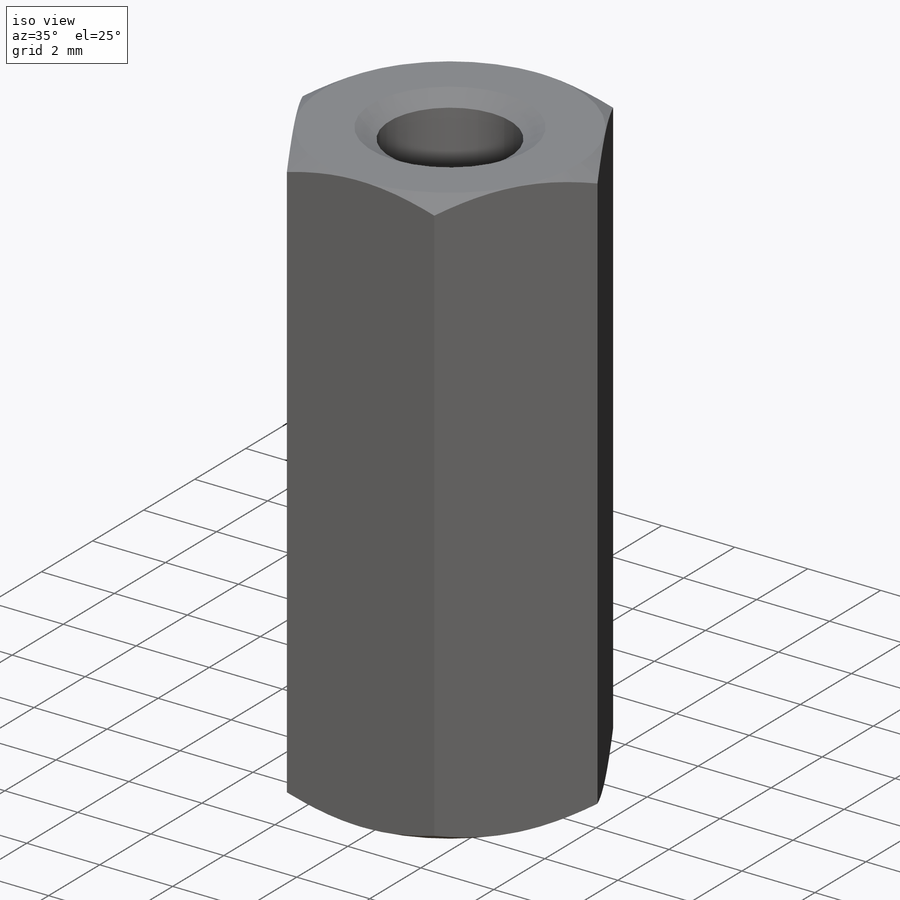
[diagram: iso view]
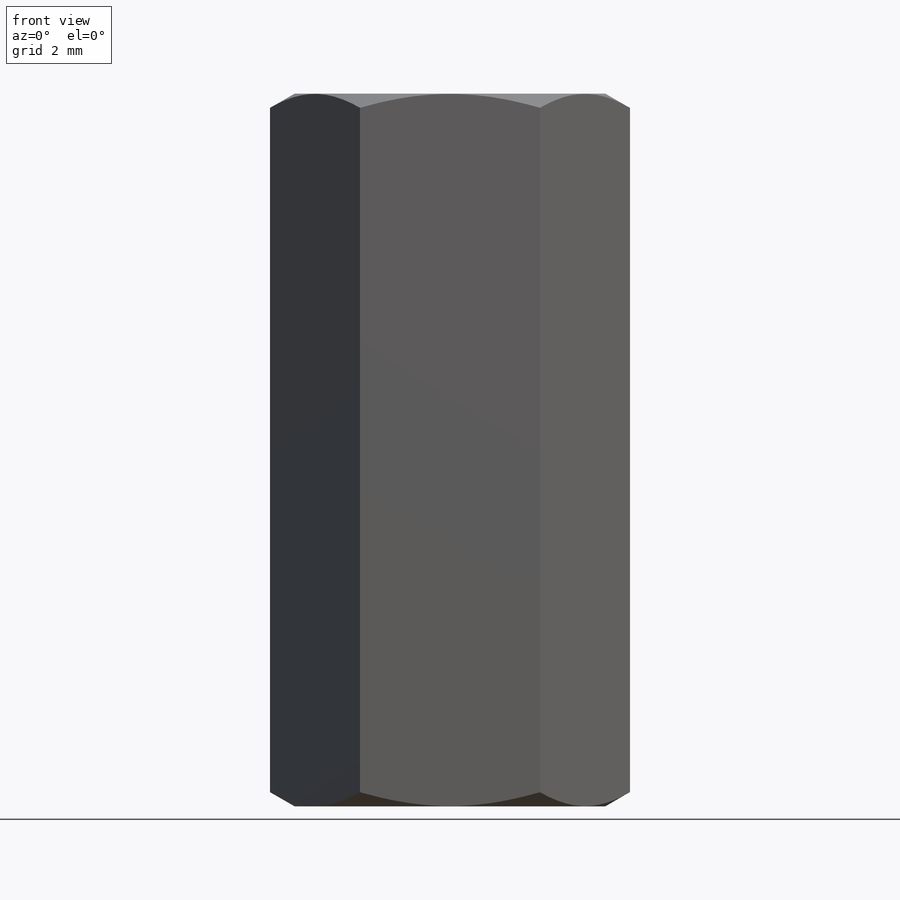
[diagram: front view]
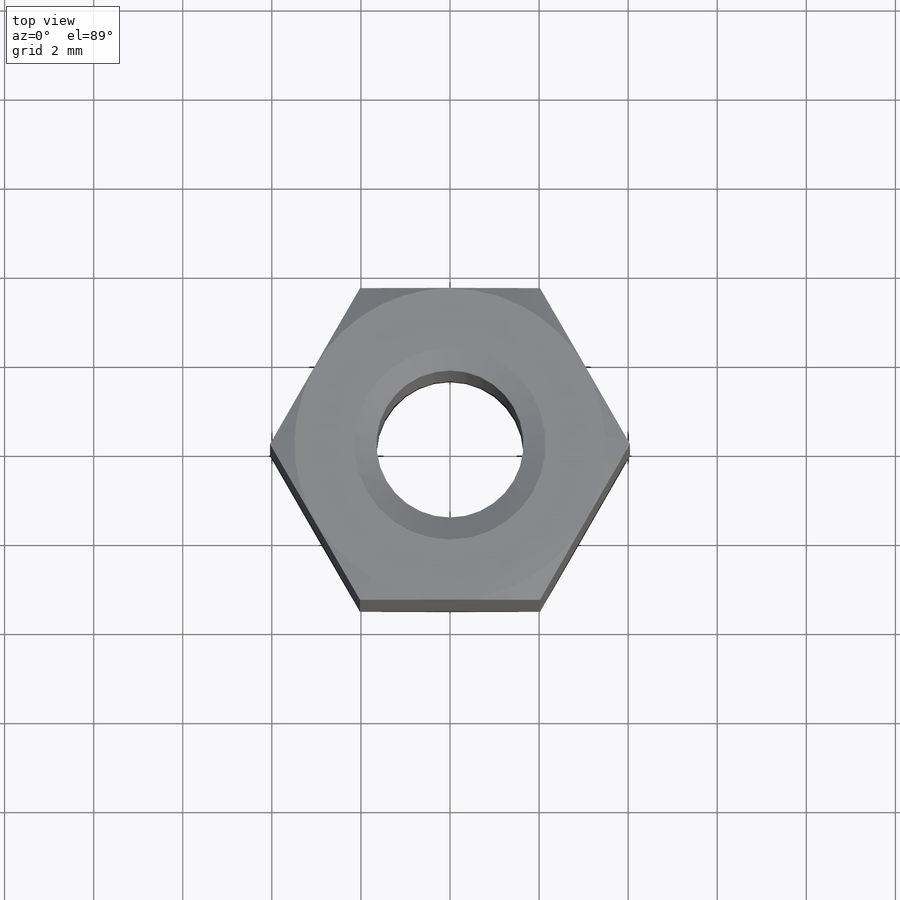
[diagram: top view]
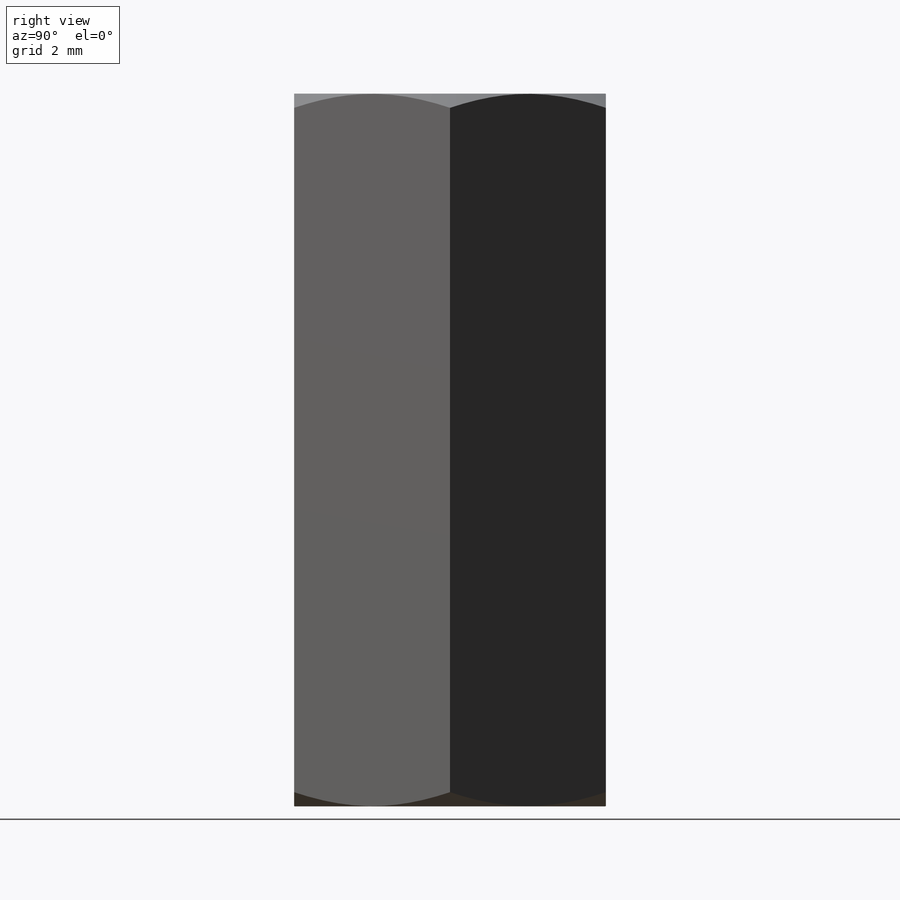
[diagram: right view]
SOLIDWORKS PART (.sldprt)
format: sldprt  version: not decoded by parser v0  size: 203,776 bytes
history: native  units: mm
features: chamfer x3, sketch x2, material x1, extrude x1, thread x1, cut_extrude x1 (+12 scaffold rows collapsed)
feature tree (21):
  scaffold x12  (default folders/planes/origin — collapsed)
  material  "Stainless Steel (ferritic)"
  sketch  "Sketch1"  dims[D2=3.3mm D1=7.0mm]
  extrude  "Boss-Extrude1"  [1 undecoded]
  thread  "Cosmetic Thread1"  Diameter=4mm  [1 undecoded]
  chamfer  "Chamfer1"  Distance=0.55mm Angle=30deg
  chamfer  "Chamfer2"  Distance=0.55mm Angle=30deg
  sketch  "Sketch2"
  cut_extrude  "Cut-Extrude1"  [1 undecoded]
  chamfer  "Chamfer3"  Distance=0.5mm Angle=30deg
decode coverage: 5 of 8 modeling features carry decoded parameters
note: 3 parameter values undecoded
note: suppression state not decoded; provenance and decode notes live in map.json
